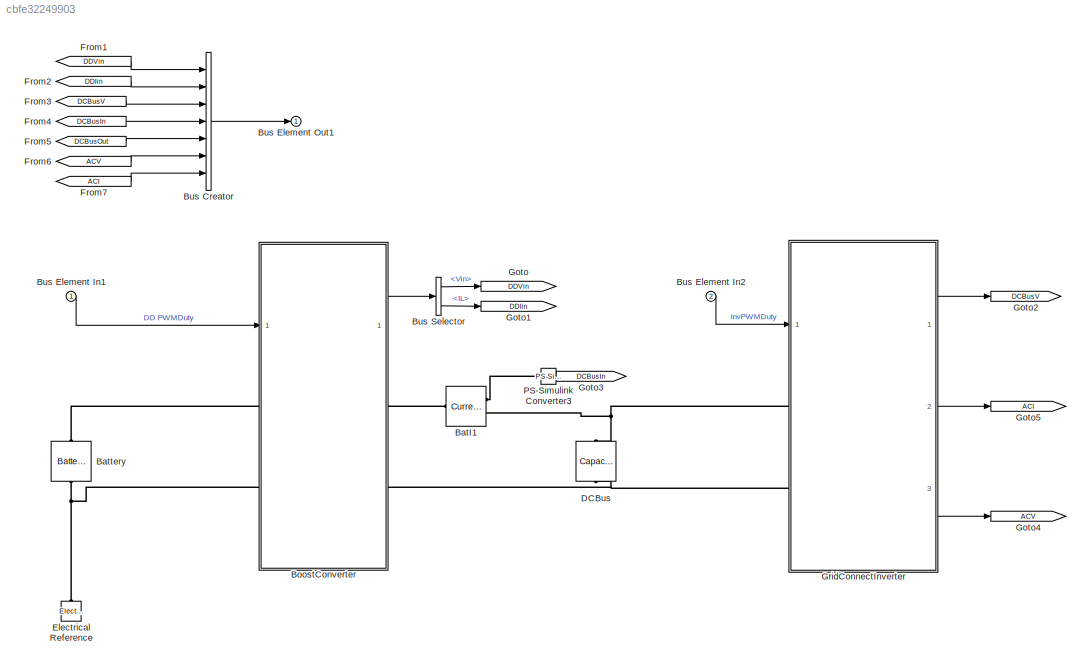
MODEL slx_cbfe32249903
KIND model
CONFIG AbsTol = auto
CONFIG EnableMultiTasking = off
CONFIG FixedStep = auto
CONFIG MaxStep = auto
CONFIG MinStep = auto
CONFIG RelTol = 1e-3
CONFIG SampleTimeConstraint = Unconstrained
CONFIG Solver = VariableStepAuto
CONFIG SolverName = VariableStepAuto
CONFIG StartTime = 0.0
CONFIG StopTime = 10.0
BLOCK [Reference] BatI1  REF=fl_lib/Electrical/Electrical Sensors/Current Sensor
  Ports = [0, 0, 0, 0, 0, 1, 2]
  SourceBlock = fl_lib/Electrical/Electrical Sensors/Current Sensor
  SourceProductBaseCode = SS
  SourceType = Current Sensor
BLOCK [Reference] Battery  REF=ee_lib/Sources/Battery
  NameLocation = right
  Ports = [0, 0, 0, 0, 0, 1, 1]
  SourceBlock = ee_lib/Sources/Battery
  SourceProductBaseCode = PS
  SourceType = Battery
BLOCK [SubSystem] BoostConverter
  Ports = [1, 1, 0, 0, 0, 2, 2]
  ReferencedSubsystem = BoostConverter
  RequestExecContextInheritance = off
BLOCK [BusCreator] Bus Creator
  DisplayOption = bar
  InheritFromInputs = on
  Inputs = 7
  Ports = [7, 1]
BLOCK [Inport] Bus Element In1
BLOCK [Inport] Bus Element In2
  Port = 2
BLOCK [Outport] Bus Element Out1
BLOCK [BusSelector] Bus Selector
  OutputSignals = Vin,Vout,IL
  Ports = [1, 3]
BLOCK [Reference] DCBus  REF=ee_lib/Passive/Capacitor
  NameLocation = left
  Ports = [0, 0, 0, 0, 0, 1, 1]
  SourceBlock = ee_lib/Passive/Capacitor
  SourceProductBaseCode = PS
  SourceType = Capacitor
BLOCK [Reference] Electrical Reference  REF=fl_lib/Electrical/Electrical Elements/Electrical Reference
  NameLocation = right
  Ports = [0, 0, 0, 0, 0, 1]
  SourceBlock = fl_lib/Electrical/Electrical Elements/Electrical Reference
  SourceProductBaseCode = SS
  SourceType = Electrical Reference
BLOCK [From] From1
  GotoTag = DDVin
  NameLocation = top
BLOCK [From] From2
  GotoTag = DDIin
BLOCK [From] From3
  GotoTag = DCBusV
  NameLocation = top
BLOCK [From] From4
  GotoTag = DCBusIn
  NameLocation = top
BLOCK [From] From5
  GotoTag = DCBusOut
  NameLocation = top
BLOCK [From] From6
  GotoTag = ACV
  NameLocation = top
BLOCK [From] From7
  GotoTag = ACI
  NameLocation = top
BLOCK [Goto] Goto
  GotoTag = DDVin
BLOCK [Goto] Goto1
  GotoTag = DDIin
BLOCK [Goto] Goto2
  GotoTag = DCBusV
BLOCK [Goto] Goto3
  GotoTag = DCBusIn
BLOCK [Goto] Goto4
  GotoTag = ACV
BLOCK [Goto] Goto5
  GotoTag = ACI
BLOCK [SubSystem] GridConnectInverter
  Ports = [1, 3, 0, 0, 0, 2]
  ReferencedSubsystem = GridConnctInverterPlant
  RequestExecContextInheritance = off
BLOCK [Reference] PS-Simulink Converter3  REF=nesl_utility/PS-Simulink
Converter
  Ports = [0, 1, 0, 0, 0, 1]
  SourceBlock = nesl_utility/PS-Simulink\nConverter
  SourceProductBaseCode = SS
  SourceType = PS-Simulink\nConverter
LINE BoostConverter:1 -> Bus Selector:1
LINE Bus Creator:1 -> Bus Element Out1:1
LINE Bus Element In1:1 -> BoostConverter:1
LINE Bus Element In2:1 -> GridConnectInverter:1
LINE Bus Selector:1 -> Goto:1
LINE Bus Selector:3 -> Goto1:1
LINE From1:1 -> Bus Creator:1
LINE From2:1 -> Bus Creator:2
LINE From3:1 -> Bus Creator:3
LINE From4:1 -> Bus Creator:4
LINE From5:1 -> Bus Creator:5
LINE From6:1 -> Bus Creator:6
LINE From7:1 -> Bus Creator:7
LINE GridConnectInverter:1 -> Goto2:1
LINE GridConnectInverter:2 -> Goto5:1
LINE GridConnectInverter:3 -> Goto4:1
LINE PS-Simulink Converter3:1 -> Goto3:1
PLINE BatI1:LConn1 -- BoostConverter:RConn1
PLINE BatI1:RConn1 -- PS-Simulink Converter3:LConn1
PNET net1: BatI1:RConn2 -- DCBus:LConn1 -- GridConnectInverter:LConn1
PLINE Battery:LConn1 -- BoostConverter:LConn1
PNET net2: Battery:RConn1 -- BoostConverter:LConn2 -- Electrical Reference:LConn1
PNET net3: BoostConverter:RConn2 -- DCBus:RConn1 -- GridConnectInverter:LConn2
note: PNET lines group multi-terminal physical nets as a canonical sorted terminal list (undirected conserving connections); 2-terminal nets keep the pairwise PLINE form
